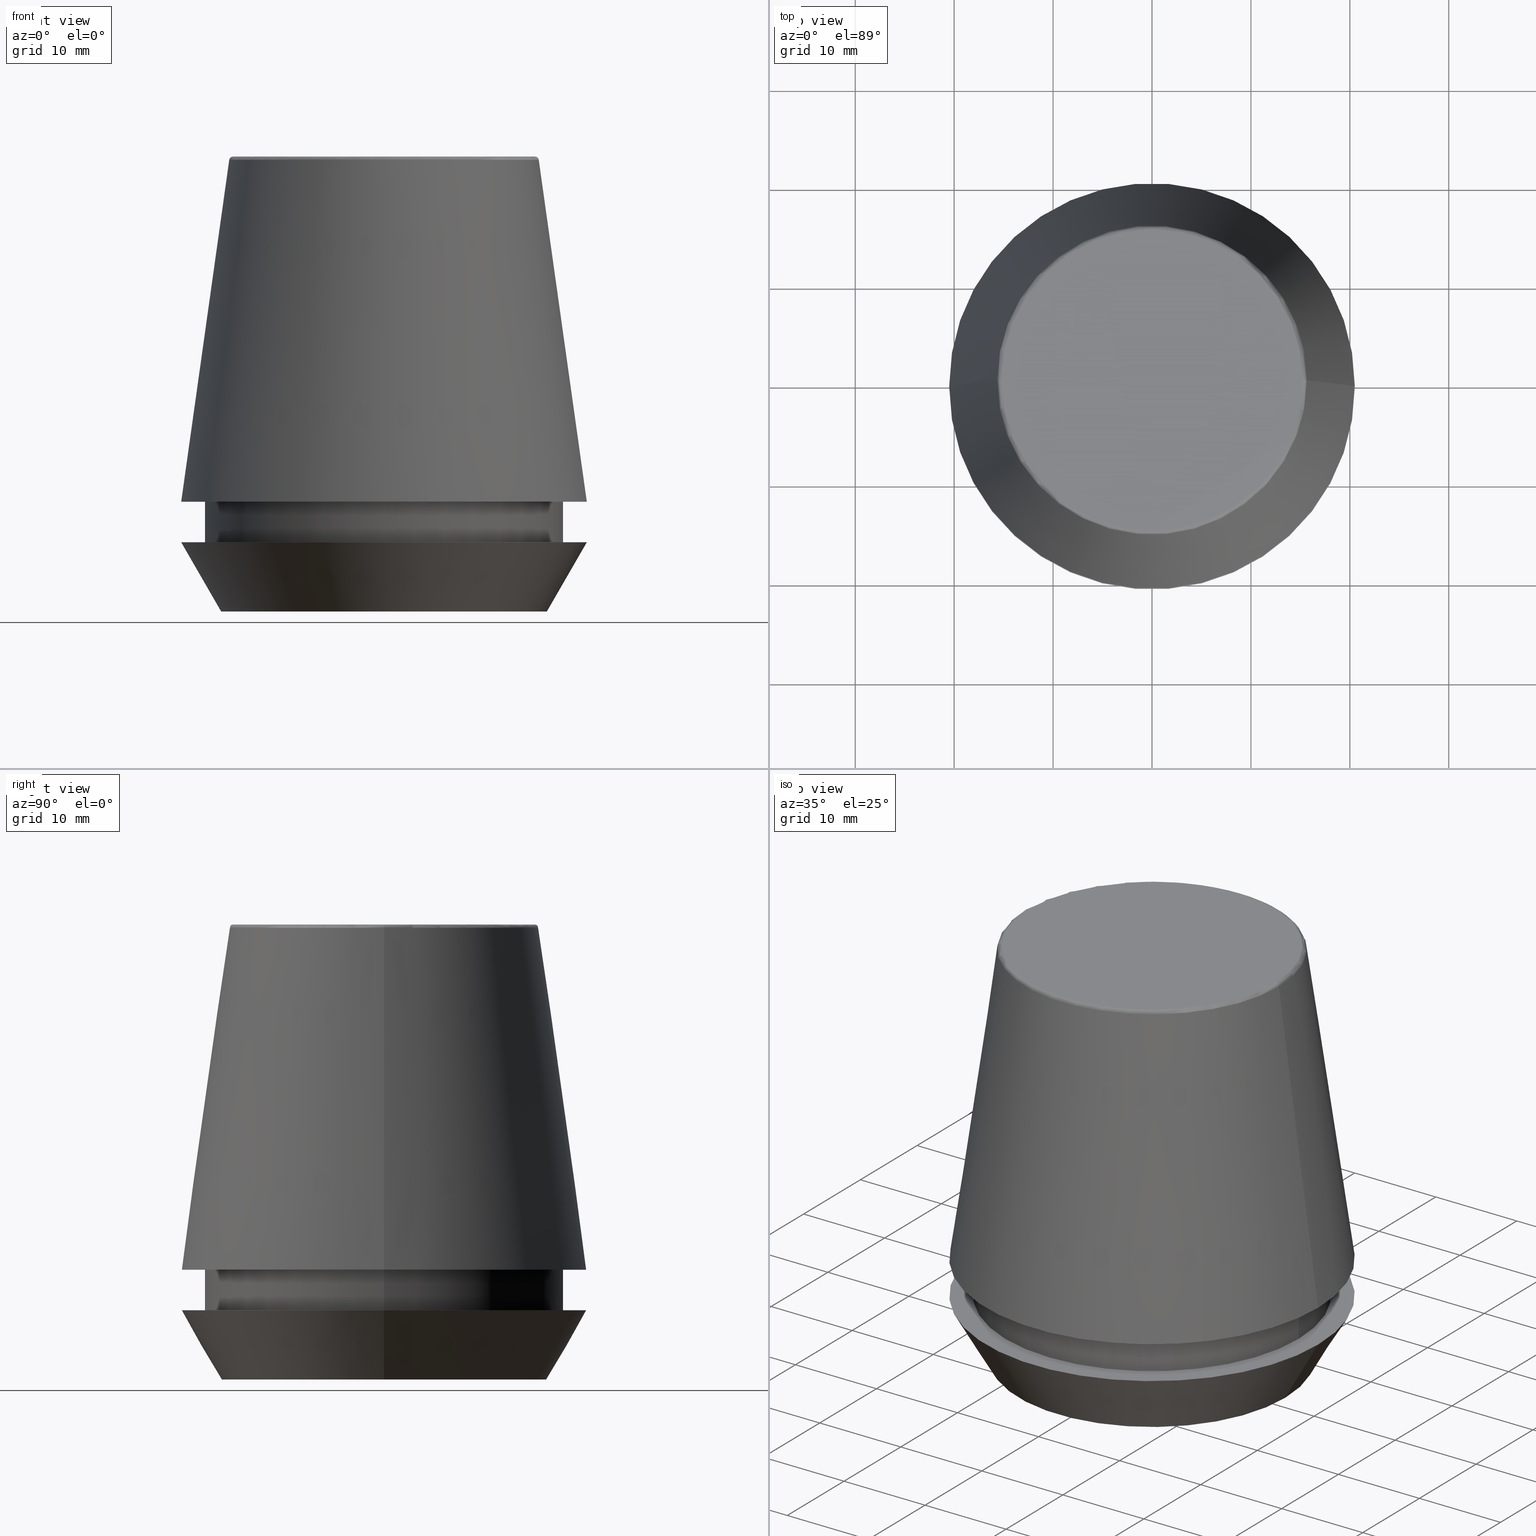
[diagram: canonical four-view strip — front | top / right | iso, engineering-drawing reading convention]
A machine part, canonical four-view strip (front | top / right | iso — engineering-drawing reading convention). The complete STEP part file that produces these views, byte-faithful:
ISO-10303-21;
HEADER;
FILE_DESCRIPTION (( 'STEP AP203' ),
    '1' );
FILE_NAME ('TAP COLLET ER 40G 20.0 X 16.0.STEP',
    '2019-04-10T04:17:22',
    ( '' ),
    ( '' ),
    'SwSTEP 2.0',
    'SolidWorks 2014',
    '' );
FILE_SCHEMA (( 'CONFIG_CONTROL_DESIGN' ));
ENDSEC;

DATA;
#1 = EDGE_LOOP ( 'NONE', ( #7, #213, #181, #353 ) ) ;
#2 = PERSON_AND_ORGANIZATION ( #189, #267 ) ;
#3 = EDGE_CURVE ( 'NONE', #75, #82, #293, .T. ) ;
#4 = FACE_OUTER_BOUND ( 'NONE', #289, .T. ) ;
#5 = CARTESIAN_POINT ( 'NONE',  ( -20.50032537154048700, 0.0000000000000000000, 11.09999999999999800 ) ) ;
#6 = EDGE_CURVE ( 'NONE', #290, #125, #141, .T. ) ;
#7 = ORIENTED_EDGE ( 'NONE', *, *, #112, .F. ) ;
#8 = CC_DESIGN_PERSON_AND_ORGANIZATION_ASSIGNMENT ( #86, #167, ( #190 ) ) ;
#9 = LOCAL_TIME ( 9, 47, 22.00000000000000000, #93 ) ;
#10 = ADVANCED_FACE ( 'NONE', ( #216 ), #357, .T. ) ;
#11 = MECHANICAL_CONTEXT ( 'NONE', #366, 'mechanical' ) ;
#12 = DIRECTION ( 'NONE',  ( 1.000000000000000000, 0.0000000000000000000, 0.0000000000000000000 ) ) ;
#13 = PERSON_AND_ORGANIZATION_ROLE ( 'classification_officer' ) ;
#14 = VECTOR ( 'NONE', #229, 1000.000000000000000 ) ;
#15 = EDGE_CURVE ( 'NONE', #206, #374, #55, .T. ) ;
#16 = DATE_AND_TIME ( #98, #177 ) ;
#17 = DIRECTION ( 'NONE',  ( 1.000000000000000000, 0.0000000000000000000, 0.0000000000000000000 ) ) ;
#18 = CARTESIAN_POINT ( 'NONE',  ( -18.10000000000000500, 2.216610706456710000E-015, 11.09999999999999800 ) ) ;
#19 = ORIENTED_EDGE ( 'NONE', *, *, #358, .T. ) ;
#20 = CARTESIAN_POINT ( 'NONE',  ( 20.50032537154048700, 2.510565784773633700E-015, 11.09999999999999800 ) ) ;
#21 = CARTESIAN_POINT ( 'NONE',  ( -15.64384277279740400, 0.0000000000000000000, 45.65566924038402900 ) ) ;
#22 = APPROVAL ( #131, 'UNSPECIFIED' ) ;
#23 = DIRECTION ( 'NONE',  ( 1.000000000000000000, 0.0000000000000000000, 0.0000000000000000000 ) ) ;
#24 = CARTESIAN_POINT ( 'NONE',  ( 0.0000000000000000000, 0.0000000000000000000, 0.0000000000000000000 ) ) ;
#25 = VECTOR ( 'NONE', #166, 1000.000000000000000 ) ;
#26 = DIRECTION ( 'NONE',  ( 1.000000000000000000, 0.0000000000000000000, 0.0000000000000000000 ) ) ;
#27 = APPROVAL_DATE_TIME ( #109, #169 ) ;
#28 = AXIS2_PLACEMENT_3D ( 'NONE', #231, #143, #23 ) ;
#29 = AXIS2_PLACEMENT_3D ( 'NONE', #149, #356, #180 ) ;
#30 = CARTESIAN_POINT ( 'NONE',  ( 0.0000000000000000000, 0.0000000000000000000, 11.09999999999999800 ) ) ;
#31 = VECTOR ( 'NONE', #36, 1000.000000000000000 ) ;
#32 = CIRCLE ( 'NONE', #238, 20.50000000000000000 ) ;
#33 = APPROVAL_PERSON_ORGANIZATION ( #119, #169, #273 ) ;
#34 = EDGE_CURVE ( 'NONE', #214, #162, #282, .T. ) ;
#35 = ADVANCED_FACE ( 'NONE', ( #130 ), #207, .T. ) ;
#36 = DIRECTION ( 'NONE',  ( -0.1391731009600587200, 0.0000000000000000000, -0.9902680687415712500 ) ) ;
#37 = PRODUCT_DEFINITION_SHAPE ( 'NONE', 'NONE',  #178 ) ;
#38 = ORIENTED_EDGE ( 'NONE', *, *, #6, .T. ) ;
#39 = EDGE_CURVE ( 'NONE', #362, #374, #368, .T. ) ;
#40 = ADVANCED_FACE ( 'NONE', ( #65 ), #197, .T. ) ;
#41 = APPLICATION_CONTEXT ( 'configuration controlled 3d designs of mechanical parts and assemblies' ) ;
#42 = CARTESIAN_POINT ( 'NONE',  ( 0.0000000000000000000, 20.50000000000000000, 7.000000000000002700 ) ) ;
#43 = CC_DESIGN_APPROVAL ( #22, ( #190 ) ) ;
#44 = CIRCLE ( 'NONE', #387, 15.64384277279740400 ) ;
#45 = EDGE_LOOP ( 'NONE', ( #70, #369, #386, #38 ) ) ;
#46 = CARTESIAN_POINT ( 'NONE',  ( 0.0000000000000000000, 0.0000000000000000000, 46.00000000000000000 ) ) ;
#47 = CARTESIAN_POINT ( 'NONE',  ( -16.45854811567268100, 2.263058382549599700E-015, 0.0000000000000000000 ) ) ;
#48 = PLANE ( 'NONE',  #262 ) ;
#49 = EDGE_CURVE ( 'NONE', #311, #60, #201, .T. ) ;
#50 = DIRECTION ( 'NONE',  ( -0.0000000000000000000, -0.0000000000000000000, 1.000000000000000000 ) ) ;
#51 = VERTEX_POINT ( 'NONE', #203 ) ;
#52 = CC_DESIGN_DATE_AND_TIME_ASSIGNMENT ( #381, #97, ( #355 ) ) ;
#53 = ORIENTED_EDGE ( 'NONE', *, *, #15, .T. ) ;
#54 = CARTESIAN_POINT ( 'NONE',  ( -18.10000000000000500, 2.216610706456710000E-015, 46.00000000000000000 ) ) ;
#55 = CIRCLE ( 'NONE', #135, 15.24773554530077600 ) ;
#56 = CARTESIAN_POINT ( 'NONE',  ( 16.45854811567268100, 0.0000000000000000000, 0.0000000000000000000 ) ) ;
#57 = DIRECTION ( 'NONE',  ( 1.000000000000000000, 0.0000000000000000000, 0.0000000000000000000 ) ) ;
#58 = CARTESIAN_POINT ( 'NONE',  ( 0.0000000000000000000, 0.0000000000000000000, 46.00000000000000000 ) ) ;
#59 = PLANE ( 'NONE',  #223 ) ;
#60 = VERTEX_POINT ( 'NONE', #348 ) ;
#61 = EDGE_CURVE ( 'NONE', #362, #347, #44, .T. ) ;
#62 = ORIENTED_EDGE ( 'NONE', *, *, #49, .F. ) ;
#63 = EDGE_CURVE ( 'NONE', #362, #290, #266, .T. ) ;
#64 = LOCAL_TIME ( 9, 47, 22.00000000000000000, #140 ) ;
#65 = FACE_OUTER_BOUND ( 'NONE', #204, .T. ) ;
#66 = ORIENTED_EDGE ( 'NONE', *, *, #99, .T. ) ;
#67 = CYLINDRICAL_SURFACE ( 'NONE', #244, 18.10000000000000500 ) ;
#68 = ORIENTED_EDGE ( 'NONE', *, *, #34, .F. ) ;
#69 =( NAMED_UNIT ( * ) SI_UNIT ( $, .STERADIAN. ) SOLID_ANGLE_UNIT ( ) );
#70 = ORIENTED_EDGE ( 'NONE', *, *, #340, .F. ) ;
#71 = ORIENTED_EDGE ( 'NONE', *, *, #360, .T. ) ;
#72 = DIRECTION ( 'NONE',  ( -0.0000000000000000000, -0.0000000000000000000, 1.000000000000000000 ) ) ;
#73 = CARTESIAN_POINT ( 'NONE',  ( 0.0000000000000000000, 0.0000000000000000000, 6.999999999999999100 ) ) ;
#74 = AXIS2_PLACEMENT_3D ( 'NONE', #248, #80, #275 ) ;
#75 = VERTEX_POINT ( 'NONE', #186 ) ;
#76 = EDGE_LOOP ( 'NONE', ( #299, #81 ) ) ;
#77 = CALENDAR_DATE ( 2019, 10, 4 ) ;
#78 = CIRCLE ( 'NONE', #297, 15.64384277279740400 ) ;
#79 = APPROVAL_STATUS ( 'not_yet_approved' ) ;
#80 = DIRECTION ( 'NONE',  ( 0.0000000000000000000, -1.000000000000000000, 0.0000000000000000000 ) ) ;
#81 = ORIENTED_EDGE ( 'NONE', *, *, #323, .F. ) ;
#82 = VERTEX_POINT ( 'NONE', #100 ) ;
#83 = CARTESIAN_POINT ( 'NONE',  ( 0.0000000000000000000, 15.24773554530077600, 46.00000000000000000 ) ) ;
#84 = AXIS2_PLACEMENT_3D ( 'NONE', #370, #194, #12 ) ;
#85 = EDGE_LOOP ( 'NONE', ( #264, #330 ) ) ;
#86 = PERSON_AND_ORGANIZATION ( #189, #267 ) ;
#87 = EDGE_CURVE ( 'NONE', #82, #75, #121, .T. ) ;
#88 = CIRCLE ( 'NONE', #320, 16.45854811567268100 ) ;
#89 = DIRECTION ( 'NONE',  ( -0.0000000000000000000, -0.0000000000000000000, 1.000000000000000000 ) ) ;
#90 = CARTESIAN_POINT ( 'NONE',  ( 0.0000000000000000000, 0.0000000000000000000, 0.0000000000000000000 ) ) ;
#91 = AXIS2_PLACEMENT_3D ( 'NONE', #73, #242, #161 ) ;
#92 = ORIENTED_EDGE ( 'NONE', *, *, #39, .T. ) ;
#93 = COORDINATED_UNIVERSAL_TIME_OFFSET ( 5, 30, .AHEAD. ) ;
#94 = CC_DESIGN_PERSON_AND_ORGANIZATION_ASSIGNMENT ( #2, #372, ( #190 ) ) ;
#95 = LINE ( 'NONE', #349, #240 ) ;
#96 = CARTESIAN_POINT ( 'NONE',  ( -15.24773554530077600, 1.867309052979791600E-015, 45.60000000000000100 ) ) ;
#97 = DATE_TIME_ROLE ( 'classification_date' ) ;
#98 = CALENDAR_DATE ( 2019, 10, 4 ) ;
#99 = EDGE_CURVE ( 'NONE', #347, #206, #313, .T. ) ;
#100 = CARTESIAN_POINT ( 'NONE',  ( 18.10000000000000100, 0.0000000000000000000, 6.999999999999999100 ) ) ;
#101 = ORIENTED_EDGE ( 'NONE', *, *, #345, .T. ) ;
#102 = ADVANCED_FACE ( 'NONE', ( #380, #274 ), #272, .F. ) ;
#103 = CARTESIAN_POINT ( 'NONE',  ( 0.0000000000000000000, 0.0000000000000000000, 11.09999999999999800 ) ) ;
#104 = EDGE_CURVE ( 'NONE', #157, #311, #88, .T. ) ;
#105 = APPROVAL_STATUS ( 'not_yet_approved' ) ;
#106 = PERSON_AND_ORGANIZATION_ROLE ( 'creator' ) ;
#107 = DIRECTION ( 'NONE',  ( 0.0000000000000000000, 0.0000000000000000000, -1.000000000000000000 ) ) ;
#108 = LINE ( 'NONE', #54, #14 ) ;
#109 = DATE_AND_TIME ( #185, #261 ) ;
#110 = ADVANCED_FACE ( 'NONE', ( #237 ), #382, .T. ) ;
#111 = DIRECTION ( 'NONE',  ( -1.000000000000000000, 0.0000000000000000000, 0.0000000000000000000 ) ) ;
#112 = EDGE_CURVE ( 'NONE', #347, #362, #78, .T. ) ;
#113 = CC_DESIGN_APPROVAL ( #319, ( #355 ) ) ;
#114 = ORIENTED_EDGE ( 'NONE', *, *, #104, .T. ) ;
#115 = EDGE_LOOP ( 'NONE', ( #224, #19, #68, #145 ) ) ;
#116 = DIRECTION ( 'NONE',  ( -0.0000000000000000000, -0.0000000000000000000, 1.000000000000000000 ) ) ;
#117 = CYLINDRICAL_SURFACE ( 'NONE', #365, 18.10000000000000500 ) ;
#118 = DIRECTION ( 'NONE',  ( 1.000000000000000000, 0.0000000000000000000, 0.0000000000000000000 ) ) ;
#119 = PERSON_AND_ORGANIZATION ( #189, #267 ) ;
#120 = AXIS2_PLACEMENT_3D ( 'NONE', #361, #329, #318 ) ;
#121 = CIRCLE ( 'NONE', #84, 18.10000000000000100 ) ;
#122 = ADVANCED_FACE ( 'NONE', ( #304 ), #153, .T. ) ;
#123 = DIRECTION ( 'NONE',  ( -1.000000000000000000, 1.224646799147353900E-016, 0.0000000000000000000 ) ) ;
#124 = AXIS2_PLACEMENT_3D ( 'NONE', #144, #285, #118 ) ;
#125 = VERTEX_POINT ( 'NONE', #352 ) ;
#126 = APPROVAL_DATE_TIME ( #205, #319 ) ;
#127 = ADVANCED_FACE ( 'NONE', ( #218 ), #59, .F. ) ;
#128 = EDGE_LOOP ( 'NONE', ( #287, #288 ) ) ;
#129 = DIRECTION ( 'NONE',  ( 1.000000000000000000, 0.0000000000000000000, 0.0000000000000000000 ) ) ;
#130 = FACE_OUTER_BOUND ( 'NONE', #376, .T. ) ;
#131 = APPROVAL_STATUS ( 'not_yet_approved' ) ;
#132 = DIRECTION ( 'NONE',  ( 1.000000000000000000, 0.0000000000000000000, 0.0000000000000000000 ) ) ;
#133 = AXIS2_PLACEMENT_3D ( 'NONE', #209, #331, #165 ) ;
#134 = PLANE ( 'NONE',  #276 ) ;
#135 = AXIS2_PLACEMENT_3D ( 'NONE', #58, #271, #314 ) ;
#136 = CARTESIAN_POINT ( 'NONE',  ( 0.0000000000000000000, 0.0000000000000000000, 11.09999999999999800 ) ) ;
#137 = ADVANCED_FACE ( 'NONE', ( #228 ), #67, .T. ) ;
#138 = CARTESIAN_POINT ( 'NONE',  ( -20.50032537154048700, 0.0000000000000000000, 11.09999999999999800 ) ) ;
#139 = ORIENTED_EDGE ( 'NONE', *, *, #3, .T. ) ;
#140 = COORDINATED_UNIVERSAL_TIME_OFFSET ( 5, 30, .AHEAD. ) ;
#141 = CIRCLE ( 'NONE', #124, 20.50032537154048700 ) ;
#142 = FACE_OUTER_BOUND ( 'NONE', #45, .T. ) ;
#143 = DIRECTION ( 'NONE',  ( -0.0000000000000000000, -0.0000000000000000000, 1.000000000000000000 ) ) ;
#144 = CARTESIAN_POINT ( 'NONE',  ( 0.0000000000000000000, 0.0000000000000000000, 11.09999999999999800 ) ) ;
#145 = ORIENTED_EDGE ( 'NONE', *, *, #360, .F. ) ;
#146 = ORIENTED_EDGE ( 'NONE', *, *, #354, .F. ) ;
#147 = ORIENTED_EDGE ( 'NONE', *, *, #39, .F. ) ;
#148 = EDGE_LOOP ( 'NONE', ( #147, #322, #66, #146 ) ) ;
#149 = CARTESIAN_POINT ( 'NONE',  ( 0.0000000000000000000, 0.0000000000000000000, 7.000000000000006200 ) ) ;
#150 = ORIENTED_EDGE ( 'NONE', *, *, #15, .F. ) ;
#151 = CC_DESIGN_PERSON_AND_ORGANIZATION_ASSIGNMENT ( #302, #13, ( #355 ) ) ;
#152 = LOCAL_TIME ( 9, 47, 22.00000000000000000, #226 ) ;
#153 = TOROIDAL_SURFACE ( 'NONE', #233, 15.24773554530077600, 0.3999999999999991900 ) ;
#154 =( LENGTH_UNIT ( ) NAMED_UNIT ( * ) SI_UNIT ( .MILLI., .METRE. ) );
#155 = DIRECTION ( 'NONE',  ( 1.000000000000000000, 0.0000000000000000000, 0.0000000000000000000 ) ) ;
#156 = CC_DESIGN_PERSON_AND_ORGANIZATION_ASSIGNMENT ( #198, #217, ( #305 ) ) ;
#157 = VERTEX_POINT ( 'NONE', #47 ) ;
#158 = EDGE_CURVE ( 'NONE', #311, #157, #164, .T. ) ;
#159 = ADVANCED_FACE ( 'NONE', ( #142 ), #265, .T. ) ;
#160 = DIRECTION ( 'NONE',  ( 0.4999999999999941700, 0.0000000000000000000, 0.8660254037844420400 ) ) ;
#161 = DIRECTION ( 'NONE',  ( 1.000000000000000000, 0.0000000000000000000, 0.0000000000000000000 ) ) ;
#162 = VERTEX_POINT ( 'NONE', #18 ) ;
#163 = APPROVAL_DATE_TIME ( #236, #22 ) ;
#164 = CIRCLE ( 'NONE', #257, 16.45854811567268100 ) ;
#165 = DIRECTION ( 'NONE',  ( 1.000000000000000000, 0.0000000000000000000, 0.0000000000000000000 ) ) ;
#166 = DIRECTION ( 'NONE',  ( 0.1391731009600587200, 1.704378926181473400E-017, -0.9902680687415712500 ) ) ;
#167 = PERSON_AND_ORGANIZATION_ROLE ( 'creator' ) ;
#168 = DIRECTION ( 'NONE',  ( -0.0000000000000000000, -0.0000000000000000000, 1.000000000000000000 ) ) ;
#169 = APPROVAL ( #79, 'UNSPECIFIED' ) ;
#170 = ADVANCED_FACE ( 'NONE', ( #196, #284 ), #48, .F. ) ;
#171 = DIRECTION ( 'NONE',  ( 0.0000000000000000000, 0.0000000000000000000, -1.000000000000000000 ) ) ;
#172 = DIRECTION ( 'NONE',  ( -0.0000000000000000000, -0.0000000000000000000, 1.000000000000000000 ) ) ;
#173 = ORIENTED_EDGE ( 'NONE', *, *, #112, .T. ) ;
#174 = APPROVAL_PERSON_ORGANIZATION ( #321, #22, #334 ) ;
#175 = CARTESIAN_POINT ( 'NONE',  ( 0.0000000000000000000, 0.0000000000000000000, 11.09999999999999800 ) ) ;
#176 = CARTESIAN_POINT ( 'NONE',  ( 0.0000000000000000000, 0.0000000000000000000, 45.65566924038402900 ) ) ;
#177 = LOCAL_TIME ( 9, 47, 22.00000000000000000, #250 ) ;
#178 = PRODUCT_DEFINITION ( 'UNKNOWN', '', #190, #254 ) ;
#179 = AXIS2_PLACEMENT_3D ( 'NONE', #268, #326, #155 ) ;
#180 = DIRECTION ( 'NONE',  ( 1.000000000000000000, 0.0000000000000000000, 0.0000000000000000000 ) ) ;
#181 = ORIENTED_EDGE ( 'NONE', *, *, #323, .T. ) ;
#182 = CIRCLE ( 'NONE', #232, 18.10000000000000500 ) ;
#183 = CC_DESIGN_APPROVAL ( #169, ( #178 ) ) ;
#184 = CARTESIAN_POINT ( 'NONE',  ( -15.24773554530077600, 1.891563625393435400E-015, 46.00000000000000000 ) ) ;
#185 = CALENDAR_DATE ( 2019, 10, 4 ) ;
#186 = CARTESIAN_POINT ( 'NONE',  ( -18.10000000000000100, 2.216610706456709600E-015, 6.999999999999999100 ) ) ;
#187 = ADVANCED_FACE ( 'NONE', ( #294 ), #117, .T. ) ;
#188 = ORIENTED_EDGE ( 'NONE', *, *, #345, .F. ) ;
#189 = PERSON ( 'UNSPECIFIED', 'UNSPECIFIED', 'UNSPECIFIED', ('UNSPECIFIED'), ('UNSPECIFIED'), ('UNSPECIFIED') ) ;
#190 = PRODUCT_DEFINITION_FORMATION_WITH_SPECIFIED_SOURCE ( 'ANY', '', #305, .NOT_KNOWN. ) ;
#191 = CLOSED_SHELL ( 'NONE', ( #35, #10, #137, #110, #127, #40, #102, #187, #170, #159, #122, #210 ) ) ;
#192 = APPLICATION_PROTOCOL_DEFINITION ( 'international standard', 'config_control_design', 1994, #366 ) ;
#193 = CARTESIAN_POINT ( 'NONE',  ( 15.64384277279740400, 2.213191991290356800E-015, 45.65566924038402900 ) ) ;
#194 = DIRECTION ( 'NONE',  ( -0.0000000000000000000, -0.0000000000000000000, 1.000000000000000000 ) ) ;
#195 = SECURITY_CLASSIFICATION_LEVEL ( 'unclassified' ) ;
#196 = FACE_OUTER_BOUND ( 'NONE', #76, .T. ) ;
#197 = CONICAL_SURFACE ( 'NONE', #179, 16.45854811567268100, 0.5235987755982921500 ) ;
#198 = PERSON_AND_ORGANIZATION ( #189, #267 ) ;
#199 = CARTESIAN_POINT ( 'NONE',  ( 0.0000000000000000000, 0.0000000000000000000, 46.00000000000000000 ) ) ;
#200 = DIRECTION ( 'NONE',  ( 1.000000000000000000, 0.0000000000000000000, 0.0000000000000000000 ) ) ;
#201 = LINE ( 'NONE', #56, #351 ) ;
#202 = DIRECTION ( 'NONE',  ( 1.000000000000000000, 0.0000000000000000000, 0.0000000000000000000 ) ) ;
#203 = CARTESIAN_POINT ( 'NONE',  ( -20.50000000000000000, 2.510525938252074100E-015, 7.000000000000006200 ) ) ;
#204 = EDGE_LOOP ( 'NONE', ( #188, #114, #346, #221 ) ) ;
#205 = DATE_AND_TIME ( #280, #64 ) ;
#206 = VERTEX_POINT ( 'NONE', #309 ) ;
#207 = TOROIDAL_SURFACE ( 'NONE', #28, 15.24773554530077600, 0.3999999999999991900 ) ;
#208 = SHAPE_DEFINITION_REPRESENTATION ( #37, #225 ) ;
#209 = CARTESIAN_POINT ( 'NONE',  ( 0.0000000000000000000, 0.0000000000000000000, 0.0000000000000000000 ) ) ;
#210 = ADVANCED_FACE ( 'NONE', ( #4 ), #134, .F. ) ;
#211 = CC_DESIGN_SECURITY_CLASSIFICATION ( #355, ( #190 ) ) ;
#212 = AXIS2_PLACEMENT_3D ( 'NONE', #136, #279, #111 ) ;
#213 = ORIENTED_EDGE ( 'NONE', *, *, #340, .T. ) ;
#214 = VERTEX_POINT ( 'NONE', #277 ) ;
#215 = APPROVAL_PERSON_ORGANIZATION ( #292, #319, #306 ) ;
#216 = FACE_OUTER_BOUND ( 'NONE', #1, .T. ) ;
#217 = PERSON_AND_ORGANIZATION_ROLE ( 'design_owner' ) ;
#218 = FACE_OUTER_BOUND ( 'NONE', #364, .T. ) ;
#219 = DIRECTION ( 'NONE',  ( 1.000000000000000000, 0.0000000000000000000, 0.0000000000000000000 ) ) ;
#220 = CARTESIAN_POINT ( 'NONE',  ( 0.0000000000000000000, 20.50032537154048700, 11.09999999999999800 ) ) ;
#221 = ORIENTED_EDGE ( 'NONE', *, *, #316, .F. ) ;
#222 = CARTESIAN_POINT ( 'NONE',  ( 0.0000000000000000000, 0.0000000000000000000, 7.000000000000006200 ) ) ;
#223 = AXIS2_PLACEMENT_3D ( 'NONE', #90, #286, #373 ) ;
#224 = ORIENTED_EDGE ( 'NONE', *, *, #87, .T. ) ;
#225 = ADVANCED_BREP_SHAPE_REPRESENTATION ( 'TAP COLLET ER 40G 20.0 X 16.0', ( #341, #133 ), #281 ) ;
#226 = COORDINATED_UNIVERSAL_TIME_OFFSET ( 5, 30, .AHEAD. ) ;
#227 = PRODUCT_RELATED_PRODUCT_CATEGORY ( 'detail', '', ( #305 ) ) ;
#228 = FACE_OUTER_BOUND ( 'NONE', #115, .T. ) ;
#229 = DIRECTION ( 'NONE',  ( -0.0000000000000000000, -0.0000000000000000000, 1.000000000000000000 ) ) ;
#230 = DIRECTION ( 'NONE',  ( -0.0000000000000000000, -0.0000000000000000000, 1.000000000000000000 ) ) ;
#231 = CARTESIAN_POINT ( 'NONE',  ( 0.0000000000000000000, 0.0000000000000000000, 45.60000000000000100 ) ) ;
#232 = AXIS2_PLACEMENT_3D ( 'NONE', #103, #303, #129 ) ;
#233 = AXIS2_PLACEMENT_3D ( 'NONE', #317, #89, #26 ) ;
#234 = CC_DESIGN_DATE_AND_TIME_ASSIGNMENT ( #16, #307, ( #178 ) ) ;
#235 = ORIENTED_EDGE ( 'NONE', *, *, #158, .T. ) ;
#236 = DATE_AND_TIME ( #312, #9 ) ;
#237 = FACE_OUTER_BOUND ( 'NONE', #298, .T. ) ;
#238 = AXIS2_PLACEMENT_3D ( 'NONE', #222, #50, #255 ) ;
#239 =( NAMED_UNIT ( * ) PLANE_ANGLE_UNIT ( ) SI_UNIT ( $, .RADIAN. ) );
#240 = VECTOR ( 'NONE', #359, 1000.000000000000000 ) ;
#241 = CARTESIAN_POINT ( 'NONE',  ( 0.0000000000000000000, 0.0000000000000000000, 45.65566924038402900 ) ) ;
#242 = DIRECTION ( 'NONE',  ( -0.0000000000000000000, -0.0000000000000000000, 1.000000000000000000 ) ) ;
#243 = EDGE_LOOP ( 'NONE', ( #278, #300 ) ) ;
#244 = AXIS2_PLACEMENT_3D ( 'NONE', #199, #375, #17 ) ;
#245 = DIRECTION ( 'NONE',  ( 1.000000000000000000, 0.0000000000000000000, 0.0000000000000000000 ) ) ;
#246 = AXIS2_PLACEMENT_3D ( 'NONE', #283, #116, #315 ) ;
#247 = APPLICATION_PROTOCOL_DEFINITION ( 'international standard', 'config_control_design', 1994, #41 ) ;
#248 = CARTESIAN_POINT ( 'NONE',  ( 15.24773554530077600, 0.0000000000000000000, 45.60000000000000100 ) ) ;
#249 = VECTOR ( 'NONE', #367, 1000.000000000000000 ) ;
#250 = COORDINATED_UNIVERSAL_TIME_OFFSET ( 5, 30, .AHEAD. ) ;
#251 = DIRECTION ( 'NONE',  ( -0.0000000000000000000, -0.0000000000000000000, 1.000000000000000000 ) ) ;
#252 = DIRECTION ( 'NONE',  ( -1.000000000000000000, 0.0000000000000000000, -0.0000000000000000000 ) ) ;
#253 = CC_DESIGN_PERSON_AND_ORGANIZATION_ASSIGNMENT ( #327, #106, ( #178 ) ) ;
#254 = DESIGN_CONTEXT ( 'detailed design', #41, 'design' ) ;
#255 = DIRECTION ( 'NONE',  ( 1.000000000000000000, 0.0000000000000000000, 0.0000000000000000000 ) ) ;
#256 = ORIENTED_EDGE ( 'NONE', *, *, #354, .T. ) ;
#257 = AXIS2_PLACEMENT_3D ( 'NONE', #343, #172, #378 ) ;
#258 = DIRECTION ( 'NONE',  ( 0.0000000000000000000, -0.0000000000000000000, 1.000000000000000000 ) ) ;
#259 = LINE ( 'NONE', #332, #249 ) ;
#260 = DIRECTION ( 'NONE',  ( 1.000000000000000000, 0.0000000000000000000, 0.0000000000000000000 ) ) ;
#261 = LOCAL_TIME ( 9, 47, 22.00000000000000000, #339 ) ;
#262 = AXIS2_PLACEMENT_3D ( 'NONE', #220, #258, #260 ) ;
#263 = ORIENTED_EDGE ( 'NONE', *, *, #99, .F. ) ;
#264 = ORIENTED_EDGE ( 'NONE', *, *, #34, .T. ) ;
#265 = CONICAL_SURFACE ( 'NONE', #212, 20.50032537154048700, 0.1396263401595396200 ) ;
#266 = LINE ( 'NONE', #5, #31 ) ;
#267 = ORGANIZATION ( 'UNSPECIFIED', 'UNSPECIFIED', '' ) ;
#268 = CARTESIAN_POINT ( 'NONE',  ( 0.0000000000000000000, 0.0000000000000000000, 0.0000000000000000000 ) ) ;
#269 = UNCERTAINTY_MEASURE_WITH_UNIT (LENGTH_MEASURE( 1.000000000000000100E-005 ), #154, 'distance_accuracy_value', 'NONE');
#270 = DIRECTION ( 'NONE',  ( 1.000000000000000000, 0.0000000000000000000, 0.0000000000000000000 ) ) ;
#271 = DIRECTION ( 'NONE',  ( -0.0000000000000000000, -0.0000000000000000000, 1.000000000000000000 ) ) ;
#272 = PLANE ( 'NONE',  #379 ) ;
#273 = APPROVAL_ROLE ( '' ) ;
#274 = FACE_OUTER_BOUND ( 'NONE', #128, .T. ) ;
#275 = DIRECTION ( 'NONE',  ( 0.0000000000000000000, 0.0000000000000000000, -1.000000000000000000 ) ) ;
#276 = AXIS2_PLACEMENT_3D ( 'NONE', #83, #171, #252 ) ;
#277 = CARTESIAN_POINT ( 'NONE',  ( 18.10000000000000500, 0.0000000000000000000, 11.09999999999999800 ) ) ;
#278 = ORIENTED_EDGE ( 'NONE', *, *, #87, .F. ) ;
#279 = DIRECTION ( 'NONE',  ( 0.0000000000000000000, 0.0000000000000000000, -1.000000000000000000 ) ) ;
#280 = CALENDAR_DATE ( 2019, 10, 4 ) ;
#281 =( GEOMETRIC_REPRESENTATION_CONTEXT ( 3 ) GLOBAL_UNCERTAINTY_ASSIGNED_CONTEXT ( ( #269 ) ) GLOBAL_UNIT_ASSIGNED_CONTEXT ( ( #154, #239, #69 ) ) REPRESENTATION_CONTEXT ( 'NONE', 'WORKASPACE' ) );
#282 = CIRCLE ( 'NONE', #328, 18.10000000000000500 ) ;
#283 = CARTESIAN_POINT ( 'NONE',  ( 0.0000000000000000000, 0.0000000000000000000, 46.00000000000000000 ) ) ;
#284 = FACE_BOUND ( 'NONE', #85, .T. ) ;
#285 = DIRECTION ( 'NONE',  ( -0.0000000000000000000, -0.0000000000000000000, 1.000000000000000000 ) ) ;
#286 = DIRECTION ( 'NONE',  ( 0.0000000000000000000, -0.0000000000000000000, 1.000000000000000000 ) ) ;
#287 = ORIENTED_EDGE ( 'NONE', *, *, #310, .T. ) ;
#288 = ORIENTED_EDGE ( 'NONE', *, *, #316, .T. ) ;
#289 = EDGE_LOOP ( 'NONE', ( #53, #256 ) ) ;
#290 = VERTEX_POINT ( 'NONE', #138 ) ;
#291 = ORIENTED_EDGE ( 'NONE', *, *, #104, .F. ) ;
#292 = PERSON_AND_ORGANIZATION ( #189, #267 ) ;
#293 = CIRCLE ( 'NONE', #91, 18.10000000000000100 ) ;
#294 = FACE_OUTER_BOUND ( 'NONE', #324, .T. ) ;
#295 = DIRECTION ( 'NONE',  ( 1.224646799147353200E-016, 1.000000000000000000, 0.0000000000000000000 ) ) ;
#296 = ORIENTED_EDGE ( 'NONE', *, *, #310, .F. ) ;
#297 = AXIS2_PLACEMENT_3D ( 'NONE', #176, #385, #202 ) ;
#298 = EDGE_LOOP ( 'NONE', ( #235, #101, #296, #62 ) ) ;
#299 = ORIENTED_EDGE ( 'NONE', *, *, #6, .F. ) ;
#300 = ORIENTED_EDGE ( 'NONE', *, *, #3, .F. ) ;
#301 = AXIS2_PLACEMENT_3D ( 'NONE', #336, #168, #132 ) ;
#302 = PERSON_AND_ORGANIZATION ( #189, #267 ) ;
#303 = DIRECTION ( 'NONE',  ( -0.0000000000000000000, -0.0000000000000000000, 1.000000000000000000 ) ) ;
#304 = FACE_OUTER_BOUND ( 'NONE', #148, .T. ) ;
#305 = PRODUCT ( 'TAP COLLET ER 40G 20.0 X 16.0', 'TAP COLLET ER 40G 20.0 X 16.0', '', ( #11 ) ) ;
#306 = APPROVAL_ROLE ( '' ) ;
#307 = DATE_TIME_ROLE ( 'creation_date' ) ;
#308 = DIRECTION ( 'NONE',  ( -1.000000000000000000, 0.0000000000000000000, -0.0000000000000000000 ) ) ;
#309 = CARTESIAN_POINT ( 'NONE',  ( 15.24773554530077600, 0.0000000000000000000, 46.00000000000000000 ) ) ;
#310 = EDGE_CURVE ( 'NONE', #60, #51, #32, .T. ) ;
#311 = VERTEX_POINT ( 'NONE', #344 ) ;
#312 = CALENDAR_DATE ( 2019, 10, 4 ) ;
#313 = CIRCLE ( 'NONE', #74, 0.3999999999999975800 ) ;
#314 = DIRECTION ( 'NONE',  ( 1.000000000000000000, 0.0000000000000000000, 0.0000000000000000000 ) ) ;
#315 = DIRECTION ( 'NONE',  ( 1.000000000000000000, 0.0000000000000000000, 0.0000000000000000000 ) ) ;
#316 = EDGE_CURVE ( 'NONE', #51, #60, #371, .T. ) ;
#317 = CARTESIAN_POINT ( 'NONE',  ( 0.0000000000000000000, 0.0000000000000000000, 45.60000000000000100 ) ) ;
#318 = DIRECTION ( 'NONE',  ( -1.000000000000000000, 0.0000000000000000000, 0.0000000000000000000 ) ) ;
#319 = APPROVAL ( #105, 'UNSPECIFIED' ) ;
#320 = AXIS2_PLACEMENT_3D ( 'NONE', #24, #230, #57 ) ;
#321 = PERSON_AND_ORGANIZATION ( #189, #267 ) ;
#322 = ORIENTED_EDGE ( 'NONE', *, *, #61, .T. ) ;
#323 = EDGE_CURVE ( 'NONE', #125, #290, #350, .T. ) ;
#324 = EDGE_LOOP ( 'NONE', ( #363, #139, #71, #333 ) ) ;
#325 = CIRCLE ( 'NONE', #246, 15.24773554530077600 ) ;
#326 = DIRECTION ( 'NONE',  ( -0.0000000000000000000, -0.0000000000000000000, 1.000000000000000000 ) ) ;
#327 = PERSON_AND_ORGANIZATION ( #189, #267 ) ;
#328 = AXIS2_PLACEMENT_3D ( 'NONE', #175, #383, #200 ) ;
#329 = DIRECTION ( 'NONE',  ( 0.0000000000000000000, 0.0000000000000000000, -1.000000000000000000 ) ) ;
#330 = ORIENTED_EDGE ( 'NONE', *, *, #335, .T. ) ;
#331 = DIRECTION ( 'NONE',  ( 0.0000000000000000000, 0.0000000000000000000, 1.000000000000000000 ) ) ;
#332 = CARTESIAN_POINT ( 'NONE',  ( -16.45854811567268100, 2.015590826847124800E-015, 0.0000000000000000000 ) ) ;
#333 = ORIENTED_EDGE ( 'NONE', *, *, #335, .F. ) ;
#334 = APPROVAL_ROLE ( '' ) ;
#335 = EDGE_CURVE ( 'NONE', #162, #214, #182, .T. ) ;
#336 = CARTESIAN_POINT ( 'NONE',  ( 0.0000000000000000000, 0.0000000000000000000, 0.0000000000000000000 ) ) ;
#337 = LINE ( 'NONE', #20, #25 ) ;
#338 = AXIS2_PLACEMENT_3D ( 'NONE', #30, #342, #245 ) ;
#339 = COORDINATED_UNIVERSAL_TIME_OFFSET ( 5, 30, .AHEAD. ) ;
#340 = EDGE_CURVE ( 'NONE', #347, #125, #337, .T. ) ;
#341 = MANIFOLD_SOLID_BREP ( 'Revolve1', #191 ) ;
#342 = DIRECTION ( 'NONE',  ( -0.0000000000000000000, -0.0000000000000000000, 1.000000000000000000 ) ) ;
#343 = CARTESIAN_POINT ( 'NONE',  ( 0.0000000000000000000, 0.0000000000000000000, 0.0000000000000000000 ) ) ;
#344 = CARTESIAN_POINT ( 'NONE',  ( 16.45854811567268100, 0.0000000000000000000, 0.0000000000000000000 ) ) ;
#345 = EDGE_CURVE ( 'NONE', #157, #51, #259, .T. ) ;
#346 = ORIENTED_EDGE ( 'NONE', *, *, #49, .T. ) ;
#347 = VERTEX_POINT ( 'NONE', #193 ) ;
#348 = CARTESIAN_POINT ( 'NONE',  ( 20.50000000000000000, 0.0000000000000000000, 7.000000000000006200 ) ) ;
#349 = CARTESIAN_POINT ( 'NONE',  ( 18.10000000000000500, 0.0000000000000000000, 46.00000000000000000 ) ) ;
#350 = CIRCLE ( 'NONE', #338, 20.50032537154048700 ) ;
#351 = VECTOR ( 'NONE', #160, 1000.000000000000000 ) ;
#352 = CARTESIAN_POINT ( 'NONE',  ( 20.50032537154048700, 2.510565784773633700E-015, 11.09999999999999800 ) ) ;
#353 = ORIENTED_EDGE ( 'NONE', *, *, #63, .F. ) ;
#354 = EDGE_CURVE ( 'NONE', #374, #206, #325, .T. ) ;
#355 = SECURITY_CLASSIFICATION ( '', '', #195 ) ;
#356 = DIRECTION ( 'NONE',  ( -0.0000000000000000000, -0.0000000000000000000, 1.000000000000000000 ) ) ;
#357 = CONICAL_SURFACE ( 'NONE', #120, 20.50032537154048700, 0.1396263401595396200 ) ;
#358 = EDGE_CURVE ( 'NONE', #75, #162, #108, .T. ) ;
#359 = DIRECTION ( 'NONE',  ( -0.0000000000000000000, -0.0000000000000000000, 1.000000000000000000 ) ) ;
#360 = EDGE_CURVE ( 'NONE', #82, #214, #95, .T. ) ;
#361 = CARTESIAN_POINT ( 'NONE',  ( 0.0000000000000000000, 0.0000000000000000000, 11.09999999999999800 ) ) ;
#362 = VERTEX_POINT ( 'NONE', #21 ) ;
#363 = ORIENTED_EDGE ( 'NONE', *, *, #358, .F. ) ;
#364 = EDGE_LOOP ( 'NONE', ( #377, #291 ) ) ;
#365 = AXIS2_PLACEMENT_3D ( 'NONE', #46, #251, #219 ) ;
#366 = APPLICATION_CONTEXT ( 'configuration controlled 3d designs of mechanical parts and assemblies' ) ;
#367 = DIRECTION ( 'NONE',  ( -0.4999999999999941700, 6.123233995736694500E-017, 0.8660254037844420400 ) ) ;
#368 = CIRCLE ( 'NONE', #384, 0.3999999999999975800 ) ;
#369 = ORIENTED_EDGE ( 'NONE', *, *, #61, .F. ) ;
#370 = CARTESIAN_POINT ( 'NONE',  ( 0.0000000000000000000, 0.0000000000000000000, 6.999999999999999100 ) ) ;
#371 = CIRCLE ( 'NONE', #29, 20.50000000000000000 ) ;
#372 = PERSON_AND_ORGANIZATION_ROLE ( 'design_supplier' ) ;
#373 = DIRECTION ( 'NONE',  ( 1.000000000000000000, 0.0000000000000000000, 0.0000000000000000000 ) ) ;
#374 = VERTEX_POINT ( 'NONE', #184 ) ;
#375 = DIRECTION ( 'NONE',  ( -0.0000000000000000000, -0.0000000000000000000, 1.000000000000000000 ) ) ;
#376 = EDGE_LOOP ( 'NONE', ( #173, #92, #150, #263 ) ) ;
#377 = ORIENTED_EDGE ( 'NONE', *, *, #158, .F. ) ;
#378 = DIRECTION ( 'NONE',  ( 1.000000000000000000, 0.0000000000000000000, 0.0000000000000000000 ) ) ;
#379 = AXIS2_PLACEMENT_3D ( 'NONE', #42, #107, #308 ) ;
#380 = FACE_BOUND ( 'NONE', #243, .T. ) ;
#381 = DATE_AND_TIME ( #77, #152 ) ;
#382 = CONICAL_SURFACE ( 'NONE', #301, 16.45854811567268100, 0.5235987755982921500 ) ;
#383 = DIRECTION ( 'NONE',  ( -0.0000000000000000000, -0.0000000000000000000, 1.000000000000000000 ) ) ;
#384 = AXIS2_PLACEMENT_3D ( 'NONE', #96, #295, #123 ) ;
#385 = DIRECTION ( 'NONE',  ( -0.0000000000000000000, -0.0000000000000000000, 1.000000000000000000 ) ) ;
#386 = ORIENTED_EDGE ( 'NONE', *, *, #63, .T. ) ;
#387 = AXIS2_PLACEMENT_3D ( 'NONE', #241, #72, #270 ) ;
ENDSEC;
END-ISO-10303-21;
